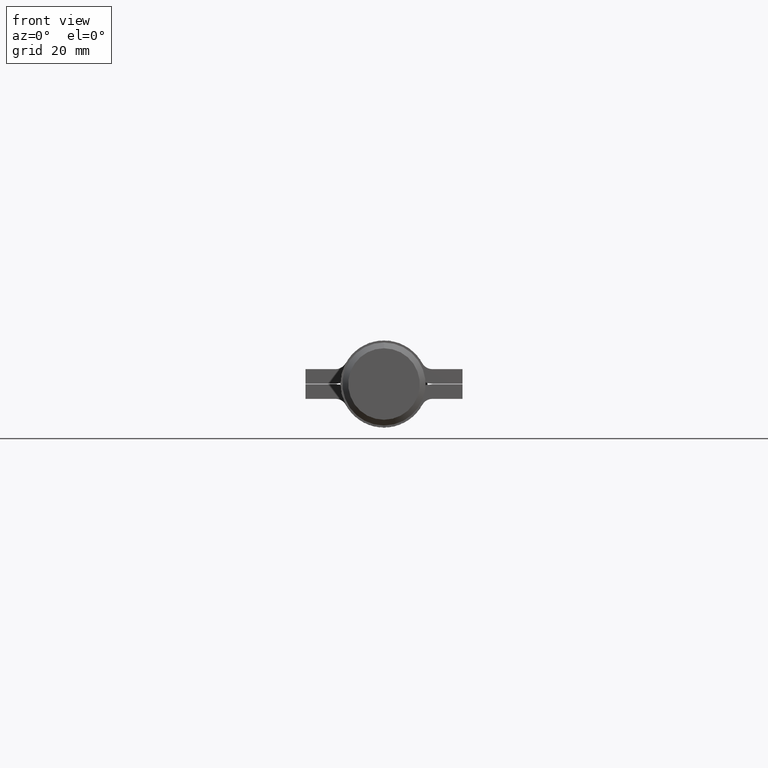
[diagram: clean part render]
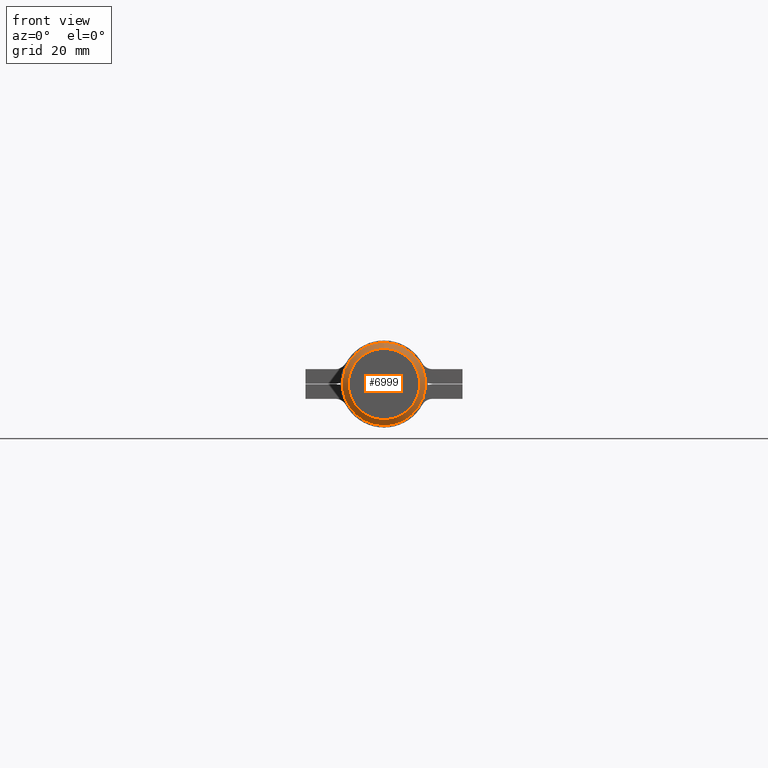
[diagram: same view with one face highlighted and labeled with its STEP entity id]
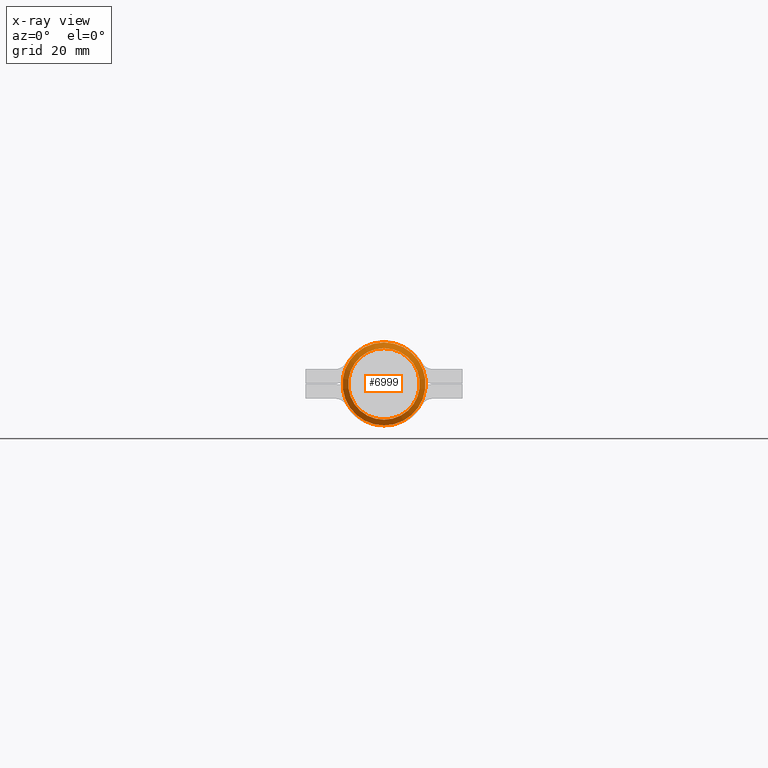
[diagram: x-ray of the same camera — body ghosted, the highlighted face saturated]
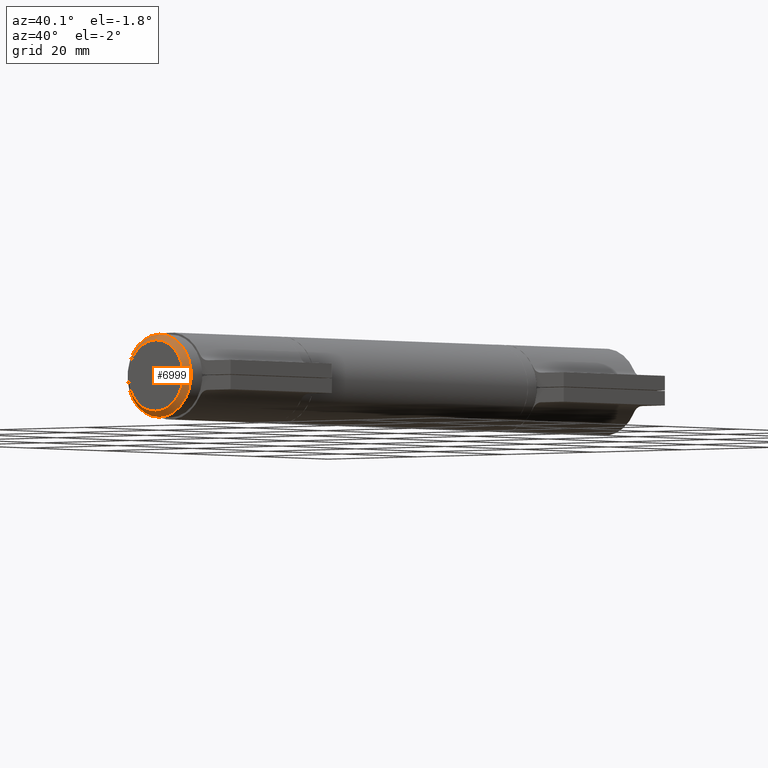
[diagram: same view with one face highlighted and labeled with its STEP entity id]
A machine part, front view. The second image highlights one B-rep face of the part: STEP entity #6999.
The next image is the same camera in x-ray: the body ghosted, the highlighted face saturated — about 0% of this face is hidden behind the body in this view.
A second angle (auxiliary view) of the same face is appended — the face is thin or edge-on in the first view.
In plain terms, the highlighted conical surface has half-angle 45 deg.
Its self-contained STEP definition (entity closure, byte-faithful):
#104 = AXIS2_PLACEMENT_3D ( 'NONE', #2796, #2871, #6538 ) ;
#954 = CARTESIAN_POINT ( 'NONE',  ( 1.812477262738082717E-14, -60.00000000000000000, 0.000000000000000000 ) ) ;
#1010 = FACE_OUTER_BOUND ( 'NONE', #3341, .T. ) ;
#1587 = CARTESIAN_POINT ( 'NONE',  ( 1.812477262738082717E-14, -60.00000000000000000, 7.149999999999999467 ) ) ;
#2232 = VERTEX_POINT ( 'NONE', #1587 ) ;
#2525 = CARTESIAN_POINT ( 'NONE',  ( 1.812477262738082717E-14, -61.00000000000000000, 6.149999999999974598 ) ) ;
#2593 = FACE_BOUND ( 'NONE', #5224, .T. ) ;
#2796 = CARTESIAN_POINT ( 'NONE',  ( 1.812477262738082717E-14, -60.00000000000000000, 0.000000000000000000 ) ) ;
#2871 = DIRECTION ( 'NONE',  ( -0.000000000000000000, 1.000000000000000000, -0.000000000000000000 ) ) ;
#3341 = EDGE_LOOP ( 'NONE', ( #10391 ) ) ;
#3708 = AXIS2_PLACEMENT_3D ( 'NONE', #954, #9201, #4643 ) ;
#4643 = DIRECTION ( 'NONE',  ( 0.000000000000000000, 0.000000000000000000, 1.000000000000000000 ) ) ;
#5224 = EDGE_LOOP ( 'NONE', ( #6244 ) ) ;
#6244 = ORIENTED_EDGE ( 'NONE', *, *, #7385, .F. ) ;
#6398 = VERTEX_POINT ( 'NONE', #2525 ) ;
#6538 = DIRECTION ( 'NONE',  ( 0.000000000000000000, 0.000000000000000000, 1.000000000000000000 ) ) ;
#6624 = CONICAL_SURFACE ( 'NONE', #104, 7.149999999999999467, 0.7853981633974600474 ) ;
#6999 = ADVANCED_FACE ( 'NONE', ( #2593, #1010 ), #6624, .T. ) ;
#7069 = DIRECTION ( 'NONE',  ( 0.000000000000000000, -1.000000000000000000, 0.000000000000000000 ) ) ;
#7385 = EDGE_CURVE ( 'NONE', #6398, #6398, #10829, .T. ) ;
#8092 = CARTESIAN_POINT ( 'NONE',  ( 1.812477262738082717E-14, -61.00000000000000000, 0.000000000000000000 ) ) ;
#8354 = EDGE_CURVE ( 'NONE', #2232, #2232, #8739, .T. ) ;
#8739 = CIRCLE ( 'NONE', #3708, 7.149999999999999467 ) ;
#8999 = DIRECTION ( 'NONE',  ( 0.000000000000000000, 0.000000000000000000, 1.000000000000000000 ) ) ;
#9201 = DIRECTION ( 'NONE',  ( -0.000000000000000000, 1.000000000000000000, -0.000000000000000000 ) ) ;
#10391 = ORIENTED_EDGE ( 'NONE', *, *, #8354, .F. ) ;
#10463 = AXIS2_PLACEMENT_3D ( 'NONE', #8092, #7069, #8999 ) ;
#10829 = CIRCLE ( 'NONE', #10463, 6.149999999999974598 ) ;